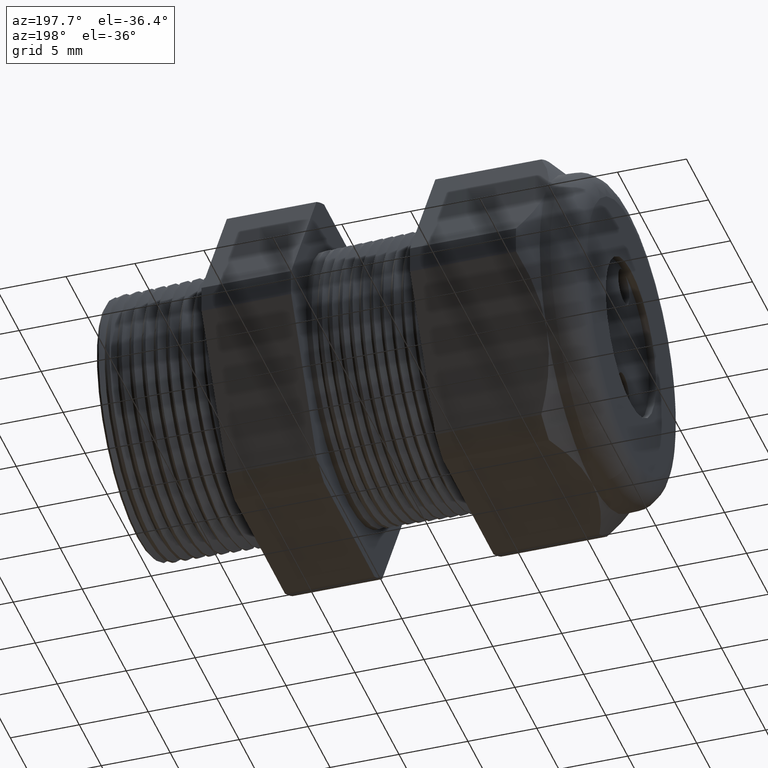
[diagram: clean part render]
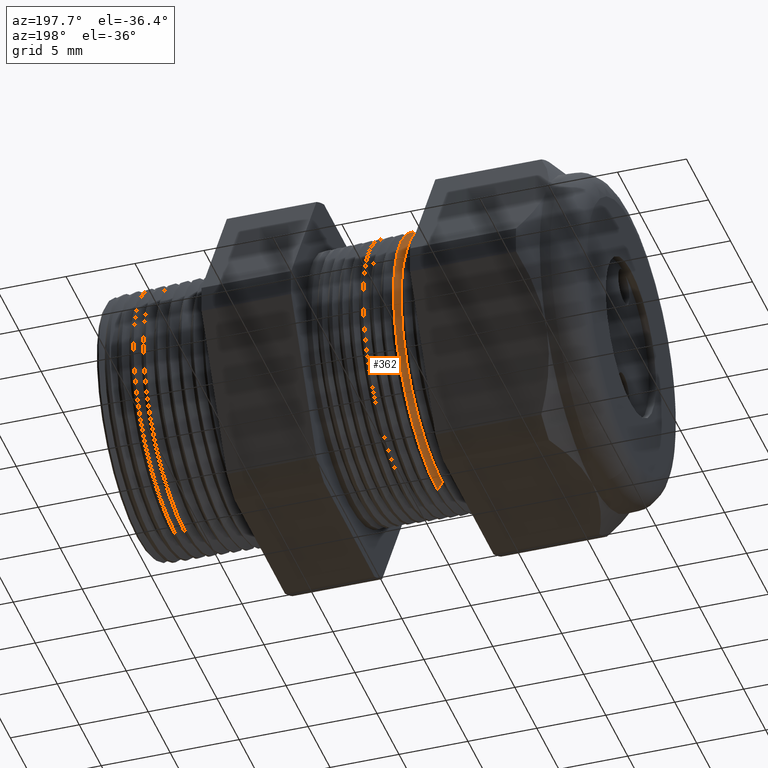
[diagram: same view with one face highlighted and labeled with its STEP entity id]
A machine part, auxiliary view. The second image highlights one B-rep face of the part: STEP entity #362.
In plain terms, the highlighted conical surface has half-angle 58.5 deg.
Its self-contained STEP definition (entity closure, byte-faithful):
#345 = ORIENTED_EDGE ( 'NONE', *, *, #346, .T. ) ;
#346 = EDGE_CURVE ( 'NONE', #372, #347, #1797, .T. ) ;
#347 = VERTEX_POINT ( 'NONE', #1793 ) ;
#348 = ORIENTED_EDGE ( 'NONE', *, *, #349, .T. ) ;
#349 = EDGE_CURVE ( 'NONE', #347, #350, #1792, .T. ) ;
#350 = VERTEX_POINT ( 'NONE', #1787 ) ;
#351 = ORIENTED_EDGE ( 'NONE', *, *, #352, .F. ) ;
#352 = EDGE_CURVE ( 'NONE', #369, #350, #1786, .T. ) ;
#362 = ADVANCED_FACE ( 'NONE', ( #1825 ), #1823, .T. ) ;
#363 = EDGE_LOOP ( 'NONE', ( #364, #345, #348, #351 ) ) ;
#364 = ORIENTED_EDGE ( 'NONE', *, *, #370, .T. ) ;
#369 = VERTEX_POINT ( 'NONE', #1812 ) ;
#370 = EDGE_CURVE ( 'NONE', #369, #372, #1811, .T. ) ;
#372 = VERTEX_POINT ( 'NONE', #1806 ) ;
#1783 = DIRECTION ( 'NONE',  ( 0.5224985647159348100, 0.0000000000000000000, -0.8526401643541007300 ) ) ;
#1784 = VECTOR ( 'NONE', #1783, 39.37007874015748900 ) ;
#1785 = CARTESIAN_POINT ( 'NONE',  ( -0.8316586839320377900, 0.0000000000000000000, -0.3696307351718083900 ) ) ;
#1786 = LINE ( 'NONE', #1785, #1784 ) ;
#1787 = CARTESIAN_POINT ( 'NONE',  ( -0.8175230488926574800, 4.809163426811477500E-017, -0.3926979950594575200 ) ) ;
#1788 = DIRECTION ( 'NONE',  ( 0.0000000000000000000, 0.0000000000000000000, -1.000000000000000000 ) ) ;
#1789 = DIRECTION ( 'NONE',  ( -1.000000000000000000, 0.0000000000000000000, 0.0000000000000000000 ) ) ;
#1790 = CARTESIAN_POINT ( 'NONE',  ( -0.8175230488926574800, 0.0000000000000000000, 0.0000000000000000000 ) ) ;
#1791 = AXIS2_PLACEMENT_3D ( 'NONE', #1790, #1789, #1788 ) ;
#1792 = CIRCLE ( 'NONE', #1791, 0.3926979950594574100 ) ;
#1793 = CARTESIAN_POINT ( 'NONE',  ( -0.8175230488926574800, 0.0000000000000000000, 0.3926979950594575200 ) ) ;
#1794 = DIRECTION ( 'NONE',  ( 0.5224985647159348100, 1.044183048100722500E-016, 0.8526401643541007300 ) ) ;
#1795 = VECTOR ( 'NONE', #1794, 39.37007874015748900 ) ;
#1796 = CARTESIAN_POINT ( 'NONE',  ( -0.8316586839320377900, 4.526670966946381200E-017, 0.3696307351718083900 ) ) ;
#1797 = LINE ( 'NONE', #1796, #1795 ) ;
#1806 = CARTESIAN_POINT ( 'NONE',  ( -0.8316586839320377900, 0.0000000000000000000, 0.3696307351718083900 ) ) ;
#1807 = DIRECTION ( 'NONE',  ( 0.0000000000000000000, 0.0000000000000000000, -1.000000000000000000 ) ) ;
#1808 = DIRECTION ( 'NONE',  ( 1.000000000000000000, 0.0000000000000000000, 0.0000000000000000000 ) ) ;
#1809 = CARTESIAN_POINT ( 'NONE',  ( -0.8316586839320377900, 0.0000000000000000000, 0.0000000000000000000 ) ) ;
#1810 = AXIS2_PLACEMENT_3D ( 'NONE', #1809, #1808, #1807 ) ;
#1811 = CIRCLE ( 'NONE', #1810, 0.3696307351718083900 ) ;
#1812 = CARTESIAN_POINT ( 'NONE',  ( -0.8316586839320377900, 4.672253604444746000E-017, -0.3696307351718083900 ) ) ;
#1819 = DIRECTION ( 'NONE',  ( 0.0000000000000000000, 0.0000000000000000000, -1.000000000000000000 ) ) ;
#1820 = DIRECTION ( 'NONE',  ( 1.000000000000000000, 0.0000000000000000000, 0.0000000000000000000 ) ) ;
#1821 = CARTESIAN_POINT ( 'NONE',  ( -0.8316586839320377900, 0.0000000000000000000, 0.0000000000000000000 ) ) ;
#1822 = AXIS2_PLACEMENT_3D ( 'NONE', #1821, #1820, #1819 ) ;
#1823 = CONICAL_SURFACE ( 'NONE', #1822, 0.3696307351718083900, 1.021017612416699200 ) ;
#1825 = FACE_OUTER_BOUND ( 'NONE', #363, .T. ) ;